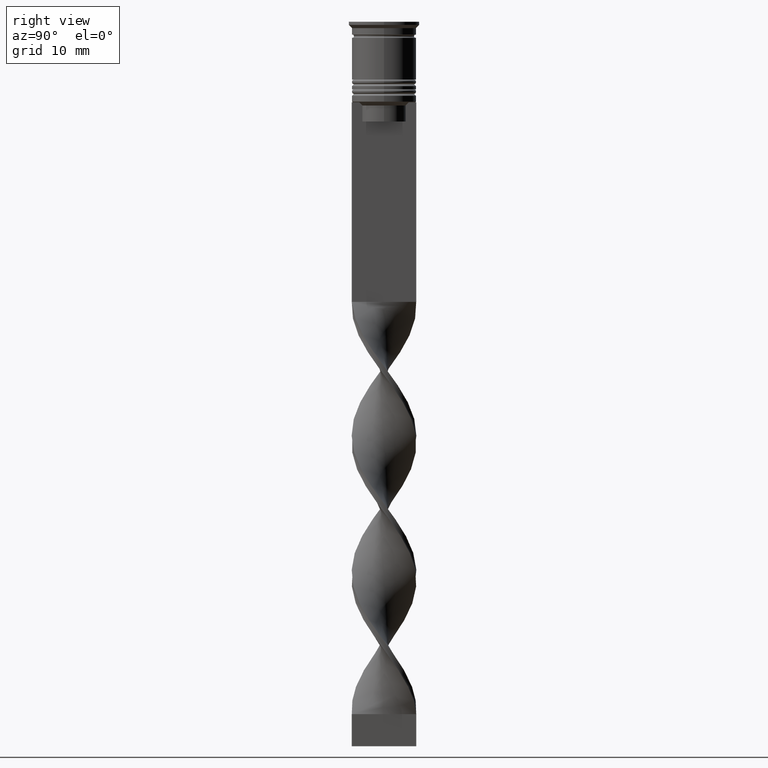
[diagram: clean part render]
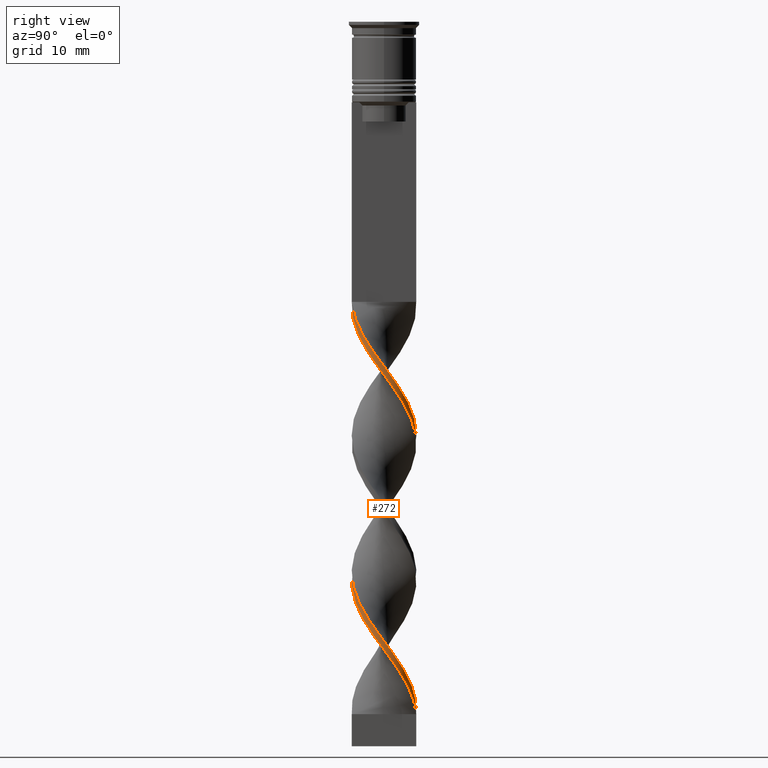
[diagram: same view with one face highlighted and labeled with its STEP entity id]
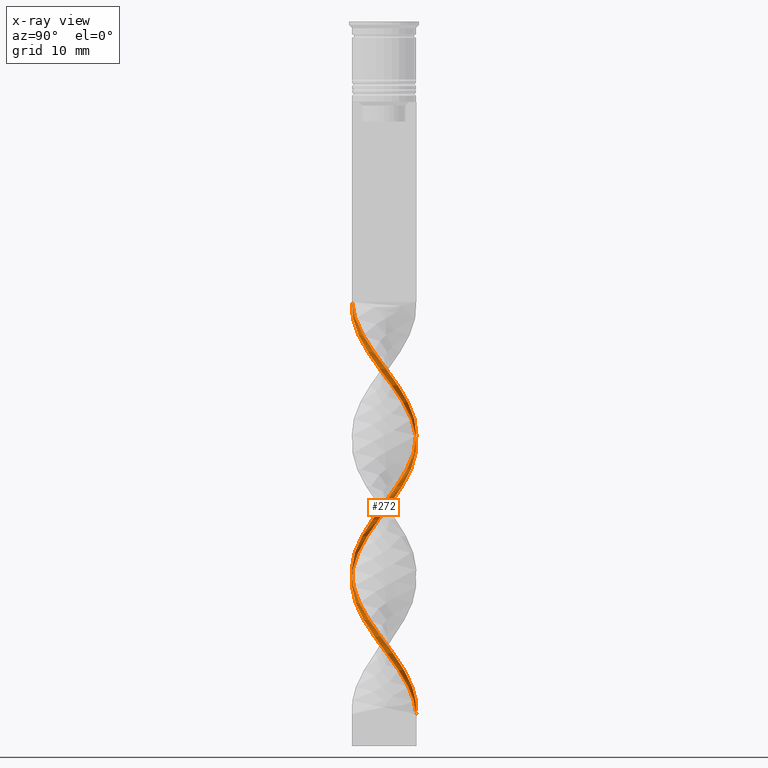
[diagram: x-ray of the same camera — body ghosted, the highlighted face saturated]
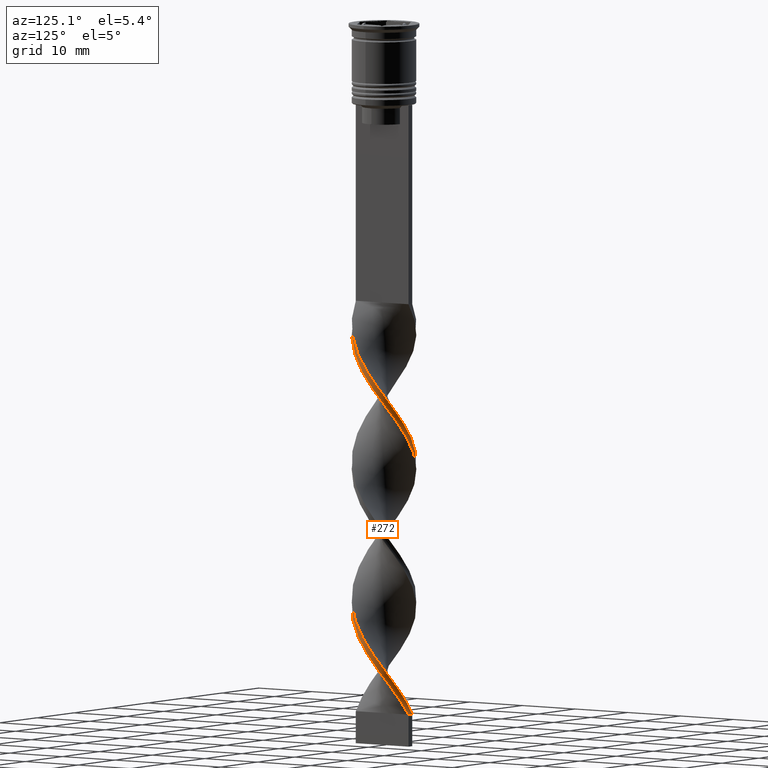
[diagram: same view with one face highlighted and labeled with its STEP entity id]
A machine part, right view. The second image highlights one B-rep face of the part: STEP entity #272.
The next image is the same camera in x-ray: the body ghosted, the highlighted face saturated — about 0% of this face is hidden behind the body in this view.
A second angle (auxiliary view) of the same face is appended — the face is thin or edge-on in the first view.
In plain terms, the highlighted face is a freeform B-spline surface patch.
Its self-contained STEP definition (entity closure, byte-faithful):
#12 = CARTESIAN_POINT ( 'NONE',  ( -0.7111074127247671850, -4.974366919274038068, -84.52564102564103621 ) ) ;
#29 = CARTESIAN_POINT ( 'NONE',  ( -4.398951702833859834, 2.428831800708950883, -71.39743589743588359 ) ) ;
#33 = CARTESIAN_POINT ( 'NONE',  ( -0.4999999999999993339, 4.999999999999999112, -64.83333333333332860 ) ) ;
#40 = CARTESIAN_POINT ( 'NONE',  ( 0.5000000000000000000, -4.999999999999999112, -43.50000000000000000 ) ) ;
#42 = CARTESIAN_POINT ( 'NONE',  ( -5.036723384328412934, -0.5036723384328404274, -75.49999999999998579 ) ) ;
#47 = CARTESIAN_POINT ( 'NONE',  ( -4.104038128678483943, 2.962961240565979537, -70.57692307692306599 ) ) ;
#61 = CARTESIAN_POINT ( 'NONE',  ( -1.315104909338220551, 4.888022846936948440, -67.29487179487178139 ) ) ;
#79 = CARTESIAN_POINT ( 'NONE',  ( 3.830886956102703245, -3.251815666602607013, -92.73076923076922640 ) ) ;
#95 = CARTESIAN_POINT ( 'NONE',  ( 2.941357917118423870, -4.074115069975903225, -48.42307692307691269 ) ) ;
#102 = CARTESIAN_POINT ( 'NONE',  ( 0.1071099161113025777, -5.060710991611129472, -44.32051282051282470 ) ) ;
#111 = CARTESIAN_POINT ( 'NONE',  ( -1.682049230150818975, -4.735051254986478497, -84.52564102564103621 ) ) ;
#125 = CARTESIAN_POINT ( 'NONE',  ( 1.107109916111304937, 4.939289008388868751, -64.01282051282051100 ) ) ;
#135 = CARTESIAN_POINT ( 'NONE',  ( 4.693865276989234836, 1.894702360851922673, -100.1153846153846274 ) ) ;
#144 = CARTESIAN_POINT ( 'NONE',  ( -1.682049230150818975, -4.735051254986478497, -84.52564102564103621 ) ) ;
#157 = CARTESIAN_POINT ( 'NONE',  ( 4.852383656948341617, -1.305516313869971246, -51.70512820512820440 ) ) ;
#161 = CARTESIAN_POINT ( 'NONE',  ( 4.225728863414809133, -2.786661774892328136, -50.88461538461537970 ) ) ;
#169 = CARTESIAN_POINT ( 'NONE',  ( 4.497778769905805163, 2.240532556555384414, -99.29487179487178139 ) ) ;
#185 = CARTESIAN_POINT ( 'NONE',  ( -2.766343873045450152, -4.194918542244163717, -82.88461538461537259 ) ) ;
#195 = CARTESIAN_POINT ( 'NONE',  ( 3.689868665289526728, 3.410992411735105811, -102.5769230769230660 ) ) ;
#196 = CARTESIAN_POINT ( 'NONE',  ( -0.1071099161113053949, -5.060710991611129472, -85.34615384615385381 ) ) ;
#200 = CARTESIAN_POINT ( 'NONE',  ( 2.256988544190325907, -4.530813501584092684, -45.96153846153845279 ) ) ;
#212 = CARTESIAN_POINT ( 'NONE',  ( 0.5000000000000006661, 4.999999999999999112, -107.5000000000000000 ) ) ;
#213 = CARTESIAN_POINT ( 'NONE',  ( 3.830886956102703245, 3.251815666602606569, -100.9358974358974308 ) ) ;
#226 = CARTESIAN_POINT ( 'NONE',  ( 0.5000000000000000000, -4.999999999999999112, -43.50000000000000000 ) ) ;
#230 = CARTESIAN_POINT ( 'NONE',  ( 4.693865276989234836, -1.894702360851923340, -93.55128205128204399 ) ) ;
#256 = CARTESIAN_POINT ( 'NONE',  ( 3.436045048790599132, 3.716969558312884558, -101.7564102564102484 ) ) ;
#271 = CARTESIAN_POINT ( 'NONE',  ( 1.315104909338224326, 4.888022846936946664, -62.37179487179486870 ) ) ;
#272 = ADVANCED_FACE ( 'NONE', ( #1051 ), #3033, .T. ) ;
#288 = CARTESIAN_POINT ( 'NONE',  ( 1.315104909338224326, 4.888022846936946664, -105.0384615384615330 ) ) ;
#294 = CARTESIAN_POINT ( 'NONE',  ( 2.446670785446252605, 4.431260581638918339, -60.73076923076922640 ) ) ;
#311 = CARTESIAN_POINT ( 'NONE',  ( -2.766343873045446600, 4.194918542244165494, -68.11538461538459899 ) ) ;
#316 = CARTESIAN_POINT ( 'NONE',  ( 5.010902036907448398, -0.7163302668880181523, -52.52564102564102910 ) ) ;
#321 = CARTESIAN_POINT ( 'NONE',  ( 3.830886956102703245, -3.251815666602607013, -50.06410256410256210 ) ) ;
#323 = EDGE_CURVE ( 'NONE', #3617, #2524, #2730, .T. ) ;
#327 = CARTESIAN_POINT ( 'NONE',  ( -4.497778769905805163, -2.240532556555384858, -77.96153846153845279 ) ) ;
#340 = CARTESIAN_POINT ( 'NONE',  ( 0.7111074127247642984, 4.974366919274038068, -105.8589743589743506 ) ) ;
#362 = CARTESIAN_POINT ( 'NONE',  ( -5.036723384328412934, 0.5036723384328424258, -75.49999999999998579 ) ) ;
#378 = CARTESIAN_POINT ( 'NONE',  ( -0.1071099161113013842, 5.060710991611130360, -65.65384615384614619 ) ) ;
#391 = CARTESIAN_POINT ( 'NONE',  ( 1.107109916111304715, 4.939289008388868751, -64.01282051282051100 ) ) ;
#400 = CARTESIAN_POINT ( 'NONE',  ( 5.010902036907447510, 0.7163302668880174862, -55.80769230769230660 ) ) ;
#406 = CARTESIAN_POINT ( 'NONE',  ( 4.398951702833859834, 2.428831800708949995, -58.26923076923076650 ) ) ;
#420 = CARTESIAN_POINT ( 'NONE',  ( 2.256988544190328128, 4.530813501584091796, -62.37179487179486870 ) ) ;
#427 = CARTESIAN_POINT ( 'NONE',  ( 2.256988544190327683, 4.530813501584091796, -105.0384615384615330 ) ) ;
#436 = CARTESIAN_POINT ( 'NONE',  ( -0.1071099161113013842, 5.060710991611129472, -65.65384615384614619 ) ) ;
#444 = CARTESIAN_POINT ( 'NONE',  ( 5.036723384328413822, 0.5036723384328410935, -96.83333333333332860 ) ) ;
#452 = CARTESIAN_POINT ( 'NONE',  ( -4.693865276989234836, -1.894702360851920231, -78.78205128205127039 ) ) ;
#457 = DIRECTION ( 'NONE',  ( -1.000000000000000000, 0.000000000000000000, 0.000000000000000000 ) ) ;
#461 = CARTESIAN_POINT ( 'NONE',  ( 4.852383656948341617, -1.305516313869971246, -94.37179487179486159 ) ) ;
#467 = CARTESIAN_POINT ( 'NONE',  ( 0.5000000000000000000, -4.999999999999999112, -43.50000000000000000 ) ) ;
#476 = CARTESIAN_POINT ( 'NONE',  ( -4.225728863414807357, 2.786661774892330357, -72.21794871794871540 ) ) ;
#484 = CARTESIAN_POINT ( 'NONE',  ( 3.275699201900568180, 3.859023582904236527, -103.3974358974358694 ) ) ;
#485 = CARTESIAN_POINT ( 'NONE',  ( -2.446670785446253493, -4.431260581638918339, -82.06410256410255499 ) ) ;
#497 = ORIENTED_EDGE ( 'NONE', *, *, #1959, .T. ) ;
#508 = CARTESIAN_POINT ( 'NONE',  ( 4.104038128678483943, -2.962961240565977761, -49.24358974358973740 ) ) ;
#528 = CARTESIAN_POINT ( 'NONE',  ( 5.010902036907449286, -0.7163302668880181523, -95.19230769230769340 ) ) ;
#551 = CARTESIAN_POINT ( 'NONE',  ( -2.256988544190325019, 4.530813501584093572, -67.29487179487178139 ) ) ;
#566 = CARTESIAN_POINT ( 'NONE',  ( 2.941357917118426091, 4.074115069975901449, -102.5769230769230660 ) ) ;
#583 = CARTESIAN_POINT ( 'NONE',  ( -0.4999999999999993339, 4.999999999999999112, -64.83333333333332860 ) ) ;
#589 = CARTESIAN_POINT ( 'NONE',  ( 2.766343873045447044, -4.194918542244165494, -46.78205128205127750 ) ) ;
#596 = CARTESIAN_POINT ( 'NONE',  ( 2.941357917118423870, -4.074115069975903225, -48.42307692307691269 ) ) ;
#605 = CARTESIAN_POINT ( 'NONE',  ( 5.036723384328412934, 0.5036723384328410935, -96.83333333333332860 ) ) ;
#618 = CARTESIAN_POINT ( 'NONE',  ( -0.5000000000000000000, -4.999999999999999112, -86.16666666666667140 ) ) ;
#626 = CARTESIAN_POINT ( 'NONE',  ( 1.107109916111302717, -4.939289008388868751, -44.32051282051282470 ) ) ;
#638 = CARTESIAN_POINT ( 'NONE',  ( 1.880887847392237244, -4.659641714287933389, -89.44871794871794179 ) ) ;
#660 = CARTESIAN_POINT ( 'NONE',  ( 1.682049230150816088, 4.735051254986480274, -63.19230769230768630 ) ) ;
#676 = CARTESIAN_POINT ( 'NONE',  ( -1.880887847392236800, 4.659641714287933389, -68.11538461538459899 ) ) ;
#687 = CARTESIAN_POINT ( 'NONE',  ( 4.903276030362607507, -1.099037838325642946, -53.34615384615383959 ) ) ;
#691 = CARTESIAN_POINT ( 'NONE',  ( 0.7111074127247624110, -4.974366919274038068, -45.14102564102563520 ) ) ;
#692 = CARTESIAN_POINT ( 'NONE',  ( 1.682049230150814534, -4.735051254986480274, -45.14102564102563520 ) ) ;
#701 = CARTESIAN_POINT ( 'NONE',  ( 4.225728863414809133, -2.786661774892328136, -93.55128205128204399 ) ) ;
#725 = CARTESIAN_POINT ( 'NONE',  ( 4.398951702833859834, 2.428831800708949995, -100.9358974358974308 ) ) ;
#732 = CARTESIAN_POINT ( 'NONE',  ( 5.010902036907448398, -0.7163302668880181523, -95.19230769230769340 ) ) ;
#740 = CARTESIAN_POINT ( 'NONE',  ( 0.5000000000000006661, 4.999999999999999112, -64.83333333333332860 ) ) ;
#749 = CARTESIAN_POINT ( 'NONE',  ( 5.023812710617931110, 0.1063289642275872526, -97.65384615384614619 ) ) ;
#758 = CARTESIAN_POINT ( 'NONE',  ( 5.010902036907447510, 0.7163302668880174862, -98.47435897435896379 ) ) ;
#775 = CARTESIAN_POINT ( 'NONE',  ( -0.4999999999999993339, 4.999999999999999112, -107.5000000000000000 ) ) ;
#794 = CARTESIAN_POINT ( 'NONE',  ( 2.766343873045447044, -4.194918542244165494, -46.78205128205127750 ) ) ;
#809 = CARTESIAN_POINT ( 'NONE',  ( 3.436045048790599132, 3.716969558312884558, -59.08974358974359120 ) ) ;
#824 = CARTESIAN_POINT ( 'NONE',  ( 2.446670785446252605, 4.431260581638919227, -60.73076923076922640 ) ) ;
#847 = CARTESIAN_POINT ( 'NONE',  ( 4.693865276989234836, -1.894702360851923117, -93.55128205128204399 ) ) ;
#864 = CARTESIAN_POINT ( 'NONE',  ( -1.682049230150812980, 4.735051254986481162, -66.47435897435896379 ) ) ;
#868 = CARTESIAN_POINT ( 'NONE',  ( 0.1071099161113048537, 5.060710991611129472, -64.01282051282051100 ) ) ;
#876 = CARTESIAN_POINT ( 'NONE',  ( 2.766343873045447044, -4.194918542244165494, -89.44871794871794179 ) ) ;
#883 = CARTESIAN_POINT ( 'NONE',  ( -1.107109916111301606, 4.939289008388868751, -65.65384615384614619 ) ) ;
#899 = CARTESIAN_POINT ( 'NONE',  ( -0.5000000000000000000, -4.999999999999999112, -43.50000000000000000 ) ) ;
#916 = CARTESIAN_POINT ( 'NONE',  ( 0.1071099161113025638, -5.060710991611130360, -44.32051282051282470 ) ) ;
#932 = CARTESIAN_POINT ( 'NONE',  ( 3.830886956102703245, -3.251815666602607013, -50.06410256410256210 ) ) ;
#950 = CARTESIAN_POINT ( 'NONE',  ( 4.497778769905805163, -2.240532556555385746, -51.70512820512820440 ) ) ;
#954 = EDGE_LOOP ( 'NONE', ( #497, #1748, #991, #1069 ) ) ;
#962 = CARTESIAN_POINT ( 'NONE',  ( -5.036723384328413822, 0.5036723384328424258, -75.50000000000000000 ) ) ;
#968 = CARTESIAN_POINT ( 'NONE',  ( 5.010902036907448398, 0.7163302668880174862, -55.80769230769230660 ) ) ;
#969 = CARTESIAN_POINT ( 'NONE',  ( 3.689868665289525396, -3.410992411735107588, -48.42307692307691269 ) ) ;
#978 = CARTESIAN_POINT ( 'NONE',  ( -3.275699201900568625, -3.859023582904236527, -82.06410256410255499 ) ) ;
#983 = CARTESIAN_POINT ( 'NONE',  ( 4.225728863414809133, 2.786661774892327692, -57.44871794871794890 ) ) ;
#991 = ORIENTED_EDGE ( 'NONE', *, *, #323, .F. ) ;
#992 = CARTESIAN_POINT ( 'NONE',  ( 4.852383656948341617, 1.305516313869969469, -99.29487179487178139 ) ) ;
#1002 = CARTESIAN_POINT ( 'NONE',  ( -0.4999999999999993339, 4.999999999999999112, -107.5000000000000000 ) ) ;
#1004 = CARTESIAN_POINT ( 'NONE',  ( -4.903276030362609283, -1.099037838325638727, -76.32051282051281760 ) ) ;
#1017 = CARTESIAN_POINT ( 'NONE',  ( -3.830886956102703245, 3.251815666602607013, -71.39743589743588359 ) ) ;
#1025 = CARTESIAN_POINT ( 'NONE',  ( 4.903276030362607507, -1.099037838325642946, -96.01282051282051100 ) ) ;
#1026 = CARTESIAN_POINT ( 'NONE',  ( 1.107109916111302717, -4.939289008388868751, -86.98717948717948900 ) ) ;
#1038 = CARTESIAN_POINT ( 'NONE',  ( 1.880887847392237244, -4.659641714287933389, -89.44871794871794179 ) ) ;
#1044 = LINE ( 'NONE', #226, #1064 ) ;
#1047 = CARTESIAN_POINT ( 'NONE',  ( 4.769828676396802969, -1.694403338218443800, -95.19230769230769340 ) ) ;
#1048 = CARTESIAN_POINT ( 'NONE',  ( 1.682049230150814534, -4.735051254986480274, -87.80769230769230660 ) ) ;
#1051 = FACE_OUTER_BOUND ( 'NONE', #954, .T. ) ;
#1062 = CARTESIAN_POINT ( 'NONE',  ( 5.010902036907448398, 0.7163302668880174862, -98.47435897435896379 ) ) ;
#1063 = CARTESIAN_POINT ( 'NONE',  ( -4.852383656948341617, 1.305516313869971912, -73.03846153846153300 ) ) ;
#1064 = VECTOR ( 'NONE', #457, 1000.000000000000000 ) ;
#1069 = ORIENTED_EDGE ( 'NONE', *, *, #1498, .F. ) ;
#1106 = CARTESIAN_POINT ( 'NONE',  ( 1.682049230150814534, -4.735051254986480274, -87.80769230769230660 ) ) ;
#1122 = CARTESIAN_POINT ( 'NONE',  ( 2.256988544190325907, -4.530813501584092684, -88.62820512820513841 ) ) ;
#1143 = CARTESIAN_POINT ( 'NONE',  ( 5.023812710617931110, -0.1063289642275889874, -53.34615384615383959 ) ) ;
#1162 = CARTESIAN_POINT ( 'NONE',  ( 0.5000000000000000000, -4.999999999999999112, -86.16666666666667140 ) ) ;
#1173 = CARTESIAN_POINT ( 'NONE',  ( 3.689868665289526728, 3.410992411735105811, -59.91025641025640880 ) ) ;
#1177 = VERTEX_POINT ( 'NONE', #3449 ) ;
#1196 = CARTESIAN_POINT ( 'NONE',  ( -3.830886956102703245, 3.251815666602607013, -71.39743589743588359 ) ) ;
#1211 = CARTESIAN_POINT ( 'NONE',  ( 1.315104909338222106, -4.888022846936947552, -45.96153846153845279 ) ) ;
#1226 = CARTESIAN_POINT ( 'NONE',  ( 2.766343873045447488, 4.194918542244164605, -61.55128205128204399 ) ) ;
#1227 = EDGE_CURVE ( 'NONE', #1177, #2524, #3275, .T. ) ;
#1241 = CARTESIAN_POINT ( 'NONE',  ( -4.903276030362607507, 1.099037838325644723, -74.67948717948718240 ) ) ;
#1251 = CARTESIAN_POINT ( 'NONE',  ( -5.010902036907449286, -0.7163302668880155988, -77.14102564102563520 ) ) ;
#1259 = CARTESIAN_POINT ( 'NONE',  ( 0.5000000000000006661, 4.999999999999999112, -107.5000000000000000 ) ) ;
#1261 = CARTESIAN_POINT ( 'NONE',  ( 5.036723384328413822, -0.5036723384328417596, -54.16666666666666430 ) ) ;
#1267 = CARTESIAN_POINT ( 'NONE',  ( 4.852383656948341617, 1.305516313869969469, -99.29487179487178139 ) ) ;
#1268 = CARTESIAN_POINT ( 'NONE',  ( 4.769828676396803857, 1.694403338218442689, -55.80769230769230660 ) ) ;
#1275 = CARTESIAN_POINT ( 'NONE',  ( 5.036723384328413822, -0.5036723384328417596, -96.83333333333332860 ) ) ;
#1283 = CARTESIAN_POINT ( 'NONE',  ( -5.023812710617931110, 0.1063289642275907221, -74.67948717948718240 ) ) ;
#1288 = CARTESIAN_POINT ( 'NONE',  ( 5.010902036907449286, -0.7163302668880181523, -52.52564102564103621 ) ) ;
#1293 = CARTESIAN_POINT ( 'NONE',  ( 5.023812710617931110, 0.1063289642275872526, -54.98717948717948190 ) ) ;
#1306 = CARTESIAN_POINT ( 'NONE',  ( 4.225728863414809133, 2.786661774892327692, -100.1153846153846132 ) ) ;
#1320 = CARTESIAN_POINT ( 'NONE',  ( -2.256988544190328572, -4.530813501584091796, -83.70512820512820440 ) ) ;
#1329 = CARTESIAN_POINT ( 'NONE',  ( 3.689868665289525396, -3.410992411735107588, -91.08974358974359120 ) ) ;
#1346 = CARTESIAN_POINT ( 'NONE',  ( 5.023812710617931110, -0.1063289642275889874, -96.01282051282051100 ) ) ;
#1352 = CARTESIAN_POINT ( 'NONE',  ( 2.766343873045447488, 4.194918542244164605, -104.2179487179487012 ) ) ;
#1360 = CARTESIAN_POINT ( 'NONE',  ( 2.256988544190326351, -4.530813501584092684, -88.62820512820512420 ) ) ;
#1387 = CARTESIAN_POINT ( 'NONE',  ( 4.497778769905805163, 2.240532556555384414, -56.62820512820513130 ) ) ;
#1392 = CARTESIAN_POINT ( 'NONE',  ( 1.107109916111304937, 4.939289008388868751, -106.6794871794871824 ) ) ;
#1402 = CARTESIAN_POINT ( 'NONE',  ( -2.941357917118426535, -4.074115069975901449, -81.24358974358973740 ) ) ;
#1410 = CARTESIAN_POINT ( 'NONE',  ( 2.256988544190328128, 4.530813501584091796, -105.0384615384615188 ) ) ;
#1420 = CARTESIAN_POINT ( 'NONE',  ( -4.903276030362609283, -1.099037838325638727, -76.32051282051281760 ) ) ;
#1429 = CARTESIAN_POINT ( 'NONE',  ( 1.315104909338224104, 4.888022846936946664, -62.37179487179486870 ) ) ;
#1444 = CARTESIAN_POINT ( 'NONE',  ( -4.225728863414810910, -2.786661774892325028, -78.78205128205127039 ) ) ;
#1450 = CARTESIAN_POINT ( 'NONE',  ( 3.830886956102703245, 3.251815666602606569, -58.26923076923076650 ) ) ;
#1460 = CARTESIAN_POINT ( 'NONE',  ( 4.497778769905805163, 2.240532556555384414, -99.29487179487178139 ) ) ;
#1467 = CARTESIAN_POINT ( 'NONE',  ( 5.023812710617931110, -0.1063289642275889874, -53.34615384615383959 ) ) ;
#1478 = CARTESIAN_POINT ( 'NONE',  ( 0.1071099161113048398, 5.060710991611130360, -106.6794871794871682 ) ) ;
#1483 = CARTESIAN_POINT ( 'NONE',  ( 4.903276030362607507, 1.099037838325641392, -54.98717948717948190 ) ) ;
#1497 = CARTESIAN_POINT ( 'NONE',  ( 2.941357917118423870, -4.074115069975903225, -91.08974358974359120 ) ) ;
#1498 = EDGE_CURVE ( 'NONE', #1636, #3617, #2641, .T. ) ;
#1513 = CARTESIAN_POINT ( 'NONE',  ( -2.941357917118423870, 4.074115069975903225, -69.75641025641024839 ) ) ;
#1527 = CARTESIAN_POINT ( 'NONE',  ( -3.689868665289527172, -3.410992411735105367, -81.24358974358973740 ) ) ;
#1536 = CARTESIAN_POINT ( 'NONE',  ( 4.693865276989234836, 1.894702360851922895, -57.44871794871794890 ) ) ;
#1545 = CARTESIAN_POINT ( 'NONE',  ( 3.275699201900568180, 3.859023582904236527, -60.73076923076922640 ) ) ;
#1546 = CARTESIAN_POINT ( 'NONE',  ( 4.693865276989234836, -1.894702360851923340, -50.88461538461537970 ) ) ;
#1555 = CARTESIAN_POINT ( 'NONE',  ( -3.436045048790596468, 3.716969558312887667, -70.57692307692306599 ) ) ;
#1568 = CARTESIAN_POINT ( 'NONE',  ( 4.398951702833859834, -2.428831800708950883, -50.06410256410256210 ) ) ;
#1573 = CARTESIAN_POINT ( 'NONE',  ( 3.689868665289526728, 3.410992411735105811, -102.5769230769230660 ) ) ;
#1580 = CARTESIAN_POINT ( 'NONE',  ( -5.010902036907447510, 0.7163302668880177082, -73.85897435897436480 ) ) ;
#1588 = CARTESIAN_POINT ( 'NONE',  ( 4.769828676396802969, -1.694403338218443578, -52.52564102564102910 ) ) ;
#1598 = CARTESIAN_POINT ( 'NONE',  ( 4.225728863414809133, -2.786661774892327692, -93.55128205128204399 ) ) ;
#1600 = CARTESIAN_POINT ( 'NONE',  ( -3.830886956102704577, -3.251815666602606125, -79.60256410256410220 ) ) ;
#1610 = CARTESIAN_POINT ( 'NONE',  ( 2.766343873045447488, 4.194918542244164605, -61.55128205128204399 ) ) ;
#1619 = CARTESIAN_POINT ( 'NONE',  ( 3.275699201900567292, -3.859023582904237415, -90.26923076923077360 ) ) ;
#1636 = VERTEX_POINT ( 'NONE', #40 ) ;
#1638 = CARTESIAN_POINT ( 'NONE',  ( 0.5000000000000000000, -4.999999999999999112, -86.16666666666667140 ) ) ;
#1642 = CARTESIAN_POINT ( 'NONE',  ( 4.693865276989234836, -1.894702360851923117, -50.88461538461538680 ) ) ;
#1663 = CARTESIAN_POINT ( 'NONE',  ( -2.446670785446253493, -4.431260581638919227, -82.06410256410255499 ) ) ;
#1682 = CARTESIAN_POINT ( 'NONE',  ( -5.010902036907448398, 0.7163302668880177082, -73.85897435897436480 ) ) ;
#1699 = CARTESIAN_POINT ( 'NONE',  ( 2.446670785446252605, 4.431260581638919227, -103.3974358974358694 ) ) ;
#1706 = CARTESIAN_POINT ( 'NONE',  ( 1.682049230150816088, 4.735051254986480274, -105.8589743589743506 ) ) ;
#1716 = CARTESIAN_POINT ( 'NONE',  ( -3.689868665289524952, 3.410992411735108476, -69.75641025641024839 ) ) ;
#1741 = CARTESIAN_POINT ( 'NONE',  ( -1.107109916111301828, 4.939289008388868751, -65.65384615384614619 ) ) ;
#1745 = CARTESIAN_POINT ( 'NONE',  ( -2.256988544190325019, 4.530813501584093572, -67.29487179487178139 ) ) ;
#1748 = ORIENTED_EDGE ( 'NONE', *, *, #1227, .T. ) ;
#1755 = CARTESIAN_POINT ( 'NONE',  ( -2.766343873045450152, -4.194918542244163717, -82.88461538461537259 ) ) ;
#1762 = CARTESIAN_POINT ( 'NONE',  ( 0.5000000000000000000, -4.999999999999999112, -43.50000000000000000 ) ) ;
#1773 = CARTESIAN_POINT ( 'NONE',  ( 2.446670785446252161, -4.431260581638920115, -90.26923076923075939 ) ) ;
#1798 = CARTESIAN_POINT ( 'NONE',  ( -0.7111074127247609677, 4.974366919274038956, -66.47435897435896379 ) ) ;
#1812 = CARTESIAN_POINT ( 'NONE',  ( -3.275699201900568625, -3.859023582904236527, -82.06410256410255499 ) ) ;
#1820 = CARTESIAN_POINT ( 'NONE',  ( 1.315104909338222328, -4.888022846936947552, -88.62820512820512420 ) ) ;
#1824 = CARTESIAN_POINT ( 'NONE',  ( 3.436045048790597800, -3.716969558312886335, -49.24358974358973740 ) ) ;
#1836 = CARTESIAN_POINT ( 'NONE',  ( 4.769828676396802969, -1.694403338218443578, -95.19230769230769340 ) ) ;
#1859 = CARTESIAN_POINT ( 'NONE',  ( 4.104038128678485720, 2.962961240565976428, -101.7564102564102484 ) ) ;
#1866 = CARTESIAN_POINT ( 'NONE',  ( 4.903276030362607507, 1.099037838325641392, -97.65384615384614619 ) ) ;
#1875 = CARTESIAN_POINT ( 'NONE',  ( -5.010902036907448398, -0.7163302668880155988, -77.14102564102563520 ) ) ;
#1885 = CARTESIAN_POINT ( 'NONE',  ( 3.436045048790599132, 3.716969558312884558, -101.7564102564102484 ) ) ;
#1893 = CARTESIAN_POINT ( 'NONE',  ( -0.7111074127247609677, 4.974366919274038956, -66.47435897435896379 ) ) ;
#1907 = CARTESIAN_POINT ( 'NONE',  ( -5.036723384328413822, -0.5036723384328405384, -75.50000000000000000 ) ) ;
#1928 = CARTESIAN_POINT ( 'NONE',  ( 4.497778769905805163, -2.240532556555385746, -94.37179487179486159 ) ) ;
#1933 = CARTESIAN_POINT ( 'NONE',  ( 3.275699201900567736, -3.859023582904237415, -47.60256410256408799 ) ) ;
#1949 = CARTESIAN_POINT ( 'NONE',  ( 3.275699201900567736, -3.859023582904237415, -90.26923076923075939 ) ) ;
#1959 = EDGE_CURVE ( 'NONE', #1636, #1177, #1044, .T. ) ;
#1967 = CARTESIAN_POINT ( 'NONE',  ( 1.880887847392238132, 4.659641714287932501, -61.55128205128204399 ) ) ;
#1988 = CARTESIAN_POINT ( 'NONE',  ( 4.903276030362607507, 1.099037838325641392, -97.65384615384614619 ) ) ;
#2003 = CARTESIAN_POINT ( 'NONE',  ( -5.023812710617931110, 0.1063289642275907221, -74.67948717948718240 ) ) ;
#2009 = CARTESIAN_POINT ( 'NONE',  ( 1.880887847392238132, 4.659641714287932501, -61.55128205128204399 ) ) ;
#2021 = CARTESIAN_POINT ( 'NONE',  ( 4.852383656948341617, -1.305516313869971246, -94.37179487179486159 ) ) ;
#2032 = CARTESIAN_POINT ( 'NONE',  ( -1.682049230150812980, 4.735051254986481162, -66.47435897435896379 ) ) ;
#2042 = CARTESIAN_POINT ( 'NONE',  ( -5.023812710617931110, -0.1063289642275845326, -76.32051282051281760 ) ) ;
#2046 = CARTESIAN_POINT ( 'NONE',  ( -3.275699201900567292, 3.859023582904237415, -68.93589743589743080 ) ) ;
#2052 = CARTESIAN_POINT ( 'NONE',  ( 1.315104909338222328, -4.888022846936947552, -45.96153846153845990 ) ) ;
#2057 = CARTESIAN_POINT ( 'NONE',  ( 0.7111074127247624110, -4.974366919274038068, -87.80769230769230660 ) ) ;
#2072 = CARTESIAN_POINT ( 'NONE',  ( 4.903276030362607507, -1.099037838325642946, -53.34615384615383959 ) ) ;
#2095 = CARTESIAN_POINT ( 'NONE',  ( 5.023812710617931110, 0.1063289642275872526, -54.98717948717948190 ) ) ;
#2103 = CARTESIAN_POINT ( 'NONE',  ( 0.1071099161113025777, -5.060710991611129472, -86.98717948717948900 ) ) ;
#2109 = CARTESIAN_POINT ( 'NONE',  ( -2.446670785446251273, 4.431260581638920115, -68.93589743589743080 ) ) ;
#2110 = CARTESIAN_POINT ( 'NONE',  ( 5.036723384328413822, 0.5036723384328410935, -54.16666666666666430 ) ) ;
#2121 = CARTESIAN_POINT ( 'NONE',  ( 2.446670785446252161, -4.431260581638919227, -90.26923076923077360 ) ) ;
#2141 = CARTESIAN_POINT ( 'NONE',  ( 4.693865276989234836, 1.894702360851922895, -100.1153846153846132 ) ) ;
#2153 = CARTESIAN_POINT ( 'NONE',  ( 4.398951702833859834, 2.428831800708949995, -100.9358974358974308 ) ) ;
#2154 = CARTESIAN_POINT ( 'NONE',  ( -1.880887847392241019, -4.659641714287931613, -82.88461538461537259 ) ) ;
#2161 = CARTESIAN_POINT ( 'NONE',  ( 4.398951702833859834, 2.428831800708949995, -58.26923076923076650 ) ) ;
#2170 = CARTESIAN_POINT ( 'NONE',  ( 4.104038128678484831, -2.962961240565978205, -91.91025641025643722 ) ) ;
#2178 = CARTESIAN_POINT ( 'NONE',  ( 3.830886956102703245, -3.251815666602607013, -92.73076923076922640 ) ) ;
#2186 = CARTESIAN_POINT ( 'NONE',  ( 1.107109916111304715, 4.939289008388868751, -106.6794871794871682 ) ) ;
#2187 = CARTESIAN_POINT ( 'NONE',  ( -4.769828676396803857, -1.694403338218441135, -77.14102564102563520 ) ) ;
#2210 = CARTESIAN_POINT ( 'NONE',  ( -2.941357917118426535, -4.074115069975901449, -81.24358974358973740 ) ) ;
#2233 = CARTESIAN_POINT ( 'NONE',  ( 3.830886956102703245, 3.251815666602606569, -58.26923076923076650 ) ) ;
#2248 = CARTESIAN_POINT ( 'NONE',  ( 0.7111074127247642984, 4.974366919274038068, -63.19230769230768630 ) ) ;
#2268 = CARTESIAN_POINT ( 'NONE',  ( 4.398951702833859834, -2.428831800708950883, -92.73076923076922640 ) ) ;
#2292 = CARTESIAN_POINT ( 'NONE',  ( 4.903276030362607507, 1.099037838325641392, -54.98717948717948190 ) ) ;
#2310 = CARTESIAN_POINT ( 'NONE',  ( -4.852383656948341617, 1.305516313869971912, -73.03846153846153300 ) ) ;
#2316 = CARTESIAN_POINT ( 'NONE',  ( 2.256988544190326351, -4.530813501584092684, -45.96153846153845990 ) ) ;
#2326 = CARTESIAN_POINT ( 'NONE',  ( 2.256988544190327683, 4.530813501584091796, -62.37179487179486870 ) ) ;
#2336 = CARTESIAN_POINT ( 'NONE',  ( -4.398951702833859834, 2.428831800708950883, -71.39743589743588359 ) ) ;
#2349 = CARTESIAN_POINT ( 'NONE',  ( -4.903276030362607507, 1.099037838325644723, -74.67948717948718240 ) ) ;
#2366 = CARTESIAN_POINT ( 'NONE',  ( 4.104038128678484831, 2.962961240565976428, -59.08974358974359120 ) ) ;
#2379 = CARTESIAN_POINT ( 'NONE',  ( -4.852383656948341617, -1.305516313869969913, -77.96153846153845279 ) ) ;
#2395 = CARTESIAN_POINT ( 'NONE',  ( -4.769828676396803857, 1.694403338218443134, -73.85897435897436480 ) ) ;
#2404 = CARTESIAN_POINT ( 'NONE',  ( -4.693865276989234836, -1.894702360851920009, -78.78205128205127039 ) ) ;
#2413 = CARTESIAN_POINT ( 'NONE',  ( -5.023812710617931110, -0.1063289642275845326, -76.32051282051281760 ) ) ;
#2429 = CARTESIAN_POINT ( 'NONE',  ( -1.880887847392236800, 4.659641714287933389, -68.11538461538459899 ) ) ;
#2436 = CARTESIAN_POINT ( 'NONE',  ( 1.880887847392238132, 4.659641714287932501, -104.2179487179487012 ) ) ;
#2445 = CARTESIAN_POINT ( 'NONE',  ( 4.104038128678485720, 2.962961240565976428, -59.08974358974358410 ) ) ;
#2458 = CARTESIAN_POINT ( 'NONE',  ( 1.315104909338224104, 4.888022846936946664, -105.0384615384615188 ) ) ;
#2468 = CARTESIAN_POINT ( 'NONE',  ( 0.7111074127247624110, -4.974366919274038068, -87.80769230769230660 ) ) ;
#2476 = CARTESIAN_POINT ( 'NONE',  ( 2.941357917118426091, 4.074115069975901449, -102.5769230769230660 ) ) ;
#2491 = CARTESIAN_POINT ( 'NONE',  ( 0.1071099161113048537, 5.060710991611129472, -106.6794871794871824 ) ) ;
#2515 = CARTESIAN_POINT ( 'NONE',  ( -4.225728863414810910, -2.786661774892325028, -78.78205128205127039 ) ) ;
#2524 = VERTEX_POINT ( 'NONE', #1259 ) ;
#2537 = CARTESIAN_POINT ( 'NONE',  ( -3.275699201900567736, 3.859023582904237415, -68.93589743589743080 ) ) ;
#2554 = CARTESIAN_POINT ( 'NONE',  ( 5.036723384328412934, 0.5036723384328410935, -54.16666666666665719 ) ) ;
#2571 = CARTESIAN_POINT ( 'NONE',  ( 4.225728863414809133, 2.786661774892327248, -100.1153846153846274 ) ) ;
#2580 = CARTESIAN_POINT ( 'NONE',  ( 0.7111074127247642984, 4.974366919274038068, -63.19230769230768630 ) ) ;
#2590 = CARTESIAN_POINT ( 'NONE',  ( -3.436045048790600909, -3.716969558312882782, -80.42307692307691980 ) ) ;
#2595 = CARTESIAN_POINT ( 'NONE',  ( 3.436045048790599132, 3.716969558312884558, -59.08974358974358410 ) ) ;
#2604 = CARTESIAN_POINT ( 'NONE',  ( 3.830886956102703245, 3.251815666602606569, -100.9358974358974308 ) ) ;
#2610 = CARTESIAN_POINT ( 'NONE',  ( -3.689868665289524952, 3.410992411735108476, -69.75641025641024839 ) ) ;
#2620 = CARTESIAN_POINT ( 'NONE',  ( -0.4999999999999993339, 4.999999999999999112, -107.5000000000000000 ) ) ;
#2641 =( BOUNDED_CURVE ( )  B_SPLINE_CURVE ( 2, ( #1762, #626, #692, #2316, #589, #3536, #969, #2971, #3445, #1546, #2911, #316, #1467, #2110, #1483, #1268, #3550, #983, #1450, #2595, #3273, #294, #2009, #1429, #2580, #868, #33, #883, #2032, #1745, #2891, #2046, #2610, #47, #2336, #3188, #1063, #1580, #1283, #1907, #1004, #2187, #2757, #2515, #1600, #3297, #2210, #485, #2154, #3607, #3591, #196, #1638, #1026, #1048, #1360, #3013, #1619, #1329, #2170, #3327, #230, #461, #732, #1346, #444, #1866, #2732, #169, #1306, #213, #1885, #2476, #3051, #2436, #2458, #3314, #2491, #2716 ),
 .UNSPECIFIED., .F., .T. ) 
 B_SPLINE_CURVE_WITH_KNOTS ( ( 3, 2, 2, 2, 2, 2, 2, 2, 2, 2, 2, 2, 2, 2, 2, 2, 2, 2, 2, 2, 2, 2, 2, 2, 2, 2, 2, 2, 2, 2, 2, 2, 2, 2, 2, 2, 2, 2, 2, 3 ),
 ( 0.000000000000000000, 0.01923076923076923184, 0.03846153846153846367, 0.05769230769230768857, 0.07692307692307692735, 0.09615384615384615918, 0.1153846153846153771, 0.1346153846153846090, 0.1538461538461538547, 0.1730769230769230449, 0.1923076923076923184, 0.2115384615384615363, 0.2307692307692307543, 0.2500000000000000000, 0.2692307692307692180, 0.2884615384615384359, 0.3076923076923077094, 0.3269230769230769273, 0.3461538461538460898, 0.3653846153846153633, 0.3846153846153846367, 0.4038461538461539102, 0.4230769230769230727, 0.4423076923076922906, 0.4615384615384615086, 0.4807692307692307820, 0.5000000000000000000, 0.5192307692307692735, 0.5384615384615384359, 0.5576923076923077094, 0.5769230769230768718, 0.5961538461538461453, 0.6153846153846154188, 0.6346153846153845812, 0.6538461538461538547, 0.6730769230769230171, 0.6923076923076921796, 0.7115384615384615641, 0.7307692307692307265, 0.7500000000000000000 ),
 .UNSPECIFIED. ) 
 CURVE ( )  GEOMETRIC_REPRESENTATION_ITEM ( )  RATIONAL_B_SPLINE_CURVE ( ( 1.000000000000000000, 0.9927088740980539727, 1.000000000000000000, 0.9927088740980539727, 1.000000000000000000, 0.9927088740980539727, 1.000000000000000000, 0.9927088740980539727, 1.000000000000000000, 0.9927088740980539727, 1.000000000000000000, 0.9927088740980539727, 1.000000000000000000, 0.9927088740980539727, 1.000000000000000000, 0.9927088740980539727, 1.000000000000000000, 0.9927088740980539727, 1.000000000000000000, 0.9927088740980539727, 1.000000000000000000, 0.9927088740980539727, 1.000000000000000000, 0.9927088740980539727, 1.000000000000000000, 0.9927088740980539727, 1.000000000000000000, 0.9927088740980539727, 1.000000000000000000, 0.9927088740980539727, 1.000000000000000000, 0.9927088740980539727, 1.000000000000000000, 0.9927088740980539727, 1.000000000000000000, 0.9927088740980539727, 1.000000000000000000, 0.9927088740980539727, 1.000000000000000000, 0.9927088740980539727, 1.000000000000000000, 0.9927088740980539727, 1.000000000000000000, 0.9927088740980539727, 1.000000000000000000, 0.9927088740980539727, 1.000000000000000000, 0.9927088740980539727, 1.000000000000000000, 0.9927088740980539727, 1.000000000000000000, 0.9927088740980539727, 1.000000000000000000, 0.9927088740980539727, 1.000000000000000000, 0.9927088740980539727, 1.000000000000000000, 0.9927088740980539727, 1.000000000000000000, 0.9927088740980539727, 1.000000000000000000, 0.9927088740980539727, 1.000000000000000000, 0.9927088740980539727, 1.000000000000000000, 0.9927088740980539727, 1.000000000000000000, 0.9927088740980539727, 1.000000000000000000, 0.9927088740980539727, 1.000000000000000000, 0.9927088740980539727, 1.000000000000000000, 0.9927088740980539727, 1.000000000000000000, 0.9927088740980539727, 1.000000000000000000, 0.9927088740980539727, 1.000000000000000000 ) ) 
 REPRESENTATION_ITEM ( '' )  );
#2646 = CARTESIAN_POINT ( 'NONE',  ( 3.436045048790597800, -3.716969558312886335, -91.91025641025643722 ) ) ;
#2661 = CARTESIAN_POINT ( 'NONE',  ( -4.769828676396803857, 1.694403338218443356, -73.85897435897436480 ) ) ;
#2669 = CARTESIAN_POINT ( 'NONE',  ( -0.5000000000000000000, -4.999999999999999112, -43.50000000000000000 ) ) ;
#2674 = CARTESIAN_POINT ( 'NONE',  ( -2.256988544190328128, -4.530813501584091796, -83.70512820512820440 ) ) ;
#2690 = CARTESIAN_POINT ( 'NONE',  ( -4.497778769905805163, 2.240532556555386634, -73.03846153846153300 ) ) ;
#2697 = CARTESIAN_POINT ( 'NONE',  ( 1.880887847392237244, -4.659641714287933389, -46.78205128205127750 ) ) ;
#2706 = CARTESIAN_POINT ( 'NONE',  ( -1.107109916111305603, -4.939289008388868751, -85.34615384615385381 ) ) ;
#2716 = CARTESIAN_POINT ( 'NONE',  ( -0.4999999999999993339, 4.999999999999999112, -107.5000000000000000 ) ) ;
#2722 = CARTESIAN_POINT ( 'NONE',  ( 4.497778769905805163, -2.240532556555385746, -51.70512820512820440 ) ) ;
#2730 = B_SPLINE_CURVE_WITH_KNOTS ( 'NONE', 3,
 ( #1002, #3272, #3067, #3627 ),
 .UNSPECIFIED., .F., .F.,
 ( 4, 4 ),
 ( 0.000000000000000000, 1.000000000000000000 ),
 .UNSPECIFIED. ) ;
#2731 = CARTESIAN_POINT ( 'NONE',  ( 5.036723384328412934, -0.5036723384328417596, -96.83333333333332860 ) ) ;
#2732 = CARTESIAN_POINT ( 'NONE',  ( 4.769828676396803857, 1.694403338218442689, -98.47435897435896379 ) ) ;
#2744 = CARTESIAN_POINT ( 'NONE',  ( -4.104038128678487496, -2.962961240565973764, -80.42307692307691980 ) ) ;
#2756 = CARTESIAN_POINT ( 'NONE',  ( 4.104038128678484831, 2.962961240565976428, -101.7564102564102484 ) ) ;
#2757 = CARTESIAN_POINT ( 'NONE',  ( -4.497778769905805163, -2.240532556555384858, -77.96153846153845279 ) ) ;
#2761 = CARTESIAN_POINT ( 'NONE',  ( 1.107109916111302717, -4.939289008388868751, -44.32051282051282470 ) ) ;
#2766 = CARTESIAN_POINT ( 'NONE',  ( -4.398951702833860722, -2.428831800708949551, -79.60256410256410220 ) ) ;
#2781 = CARTESIAN_POINT ( 'NONE',  ( 3.275699201900567736, 3.859023582904236527, -103.3974358974358836 ) ) ;
#2816 = CARTESIAN_POINT ( 'NONE',  ( 4.104038128678483943, -2.962961240565977761, -91.91025641025643722 ) ) ;
#2834 = CARTESIAN_POINT ( 'NONE',  ( -3.830886956102704577, -3.251815666602606125, -79.60256410256410220 ) ) ;
#2851 = CARTESIAN_POINT ( 'NONE',  ( 1.880887847392238132, 4.659641714287932501, -104.2179487179487012 ) ) ;
#2869 = CARTESIAN_POINT ( 'NONE',  ( 3.689868665289525396, -3.410992411735107588, -91.08974358974359120 ) ) ;
#2880 = CARTESIAN_POINT ( 'NONE',  ( 3.436045048790597800, -3.716969558312886335, -49.24358974358974450 ) ) ;
#2886 = CARTESIAN_POINT ( 'NONE',  ( 4.769828676396803857, 1.694403338218442912, -55.80769230769230660 ) ) ;
#2891 = CARTESIAN_POINT ( 'NONE',  ( -2.766343873045446600, 4.194918542244165494, -68.11538461538459899 ) ) ;
#2902 = CARTESIAN_POINT ( 'NONE',  ( 5.036723384328412934, -0.5036723384328417596, -54.16666666666665719 ) ) ;
#2911 = CARTESIAN_POINT ( 'NONE',  ( 4.852383656948341617, -1.305516313869971246, -51.70512820512820440 ) ) ;
#2924 = CARTESIAN_POINT ( 'NONE',  ( -4.497778769905805163, 2.240532556555386634, -73.03846153846153300 ) ) ;
#2941 = CARTESIAN_POINT ( 'NONE',  ( 4.769828676396802969, -1.694403338218443800, -52.52564102564103621 ) ) ;
#2955 = CARTESIAN_POINT ( 'NONE',  ( 4.225728863414809133, -2.786661774892327692, -50.88461538461538680 ) ) ;
#2965 = CARTESIAN_POINT ( 'NONE',  ( 2.941357917118423870, -4.074115069975903225, -91.08974358974359120 ) ) ;
#2970 = CARTESIAN_POINT ( 'NONE',  ( 4.693865276989234836, 1.894702360851922673, -57.44871794871794890 ) ) ;
#2971 = CARTESIAN_POINT ( 'NONE',  ( 4.104038128678484831, -2.962961240565978205, -49.24358974358974450 ) ) ;
#2983 = CARTESIAN_POINT ( 'NONE',  ( 3.275699201900567736, 3.859023582904236527, -60.73076923076922640 ) ) ;
#2997 = CARTESIAN_POINT ( 'NONE',  ( 1.682049230150814534, -4.735051254986480274, -45.14102564102563520 ) ) ;
#3002 = CARTESIAN_POINT ( 'NONE',  ( 1.682049230150816088, 4.735051254986480274, -63.19230769230768630 ) ) ;
#3013 = CARTESIAN_POINT ( 'NONE',  ( 2.766343873045447044, -4.194918542244165494, -89.44871794871794179 ) ) ;
#3020 = CARTESIAN_POINT ( 'NONE',  ( -2.446670785446251273, 4.431260581638919227, -68.93589743589743080 ) ) ;
#3033 =( BOUNDED_SURFACE ( )  B_SPLINE_SURFACE ( 1, 2, ( 
 ( #467, #2761, #2997, #200, #794, #1933, #3071, #508, #1568, #1642, #157, #1288, #1143, #2554, #2292, #2886, #1387, #3369, #2233, #809, #3384, #824, #1967, #271, #2248, #3406, #583, #1741, #864, #551, #311, #2537, #1716, #3423, #29, #3110, #2310, #1682, #2003, #42, #1420, #3088, #327, #1444, #2834, #2590, #1402, #1663, #3142, #3678, #12, #3692, #1162, #3438, #1106, #1122, #876, #1949, #2869, #2816, #2268, #847, #2021, #528, #3163, #605, #1988, #3128, #1460, #2571, #2604, #256, #566, #1699, #2851, #288, #340, #1478, #2620 ),
 ( #899, #916, #691, #1211, #2697, #3255, #95, #1824, #932, #2955, #950, #2941, #2072, #2902, #2095, #968, #3218, #2970, #406, #2366, #1173, #1545, #1226, #2326, #660, #391, #3240, #378, #1798, #61, #676, #2109, #1513, #3460, #1196, #3495, #2924, #2661, #2349, #362, #2042, #1251, #2379, #2404, #3535, #3515, #1527, #1812, #1755, #2674, #111, #3180, #618, #3479, #2057, #3199, #638, #1773, #1497, #2646, #79, #1598, #1928, #1047, #1025, #2731, #749, #1062, #1267, #135, #2153, #2756, #195, #484, #3296, #427, #3326, #2186, #212 ) ),
 .UNSPECIFIED., .F., .F., .F. ) 
 B_SPLINE_SURFACE_WITH_KNOTS ( ( 2, 2 ),
 ( 3, 2, 2, 2, 2, 2, 2, 2, 2, 2, 2, 2, 2, 2, 2, 2, 2, 2, 2, 2, 2, 2, 2, 2, 2, 2, 2, 2, 2, 2, 2, 2, 2, 2, 2, 2, 2, 2, 2, 3 ),
 ( 0.000000000000000000, 1.000000000000000000 ),
 ( 0.000000000000000000, 0.01923076923076923184, 0.03846153846153846367, 0.05769230769230769551, 0.07692307692307692735, 0.09615384615384615918, 0.1153846153846153910, 0.1346153846153846090, 0.1538461538461538547, 0.1730769230769230727, 0.1923076923076923184, 0.2115384615384615363, 0.2307692307692307820, 0.2500000000000000000, 0.2692307692307692180, 0.2884615384615384359, 0.3076923076923077094, 0.3269230769230769273, 0.3461538461538461453, 0.3653846153846153633, 0.3846153846153846367, 0.4038461538461538547, 0.4230769230769230727, 0.4423076923076922906, 0.4615384615384615641, 0.4807692307692307820, 0.5000000000000000000, 0.5192307692307692735, 0.5384615384615384359, 0.5576923076923077094, 0.5769230769230768718, 0.5961538461538461453, 0.6153846153846154188, 0.6346153846153845812, 0.6538461538461538547, 0.6730769230769231282, 0.6923076923076922906, 0.7115384615384615641, 0.7307692307692307265, 0.7500000000000000000 ),
 .UNSPECIFIED. ) 
 GEOMETRIC_REPRESENTATION_ITEM ( )  RATIONAL_B_SPLINE_SURFACE ( (
 ( 1.000000000000000000, 0.9927088740980539727, 1.000000000000000000, 0.9927088740980539727, 1.000000000000000000, 0.9927088740980539727, 1.000000000000000000, 0.9927088740980539727, 1.000000000000000000, 0.9927088740980539727, 1.000000000000000000, 0.9927088740980539727, 1.000000000000000000, 0.9927088740980539727, 1.000000000000000000, 0.9927088740980539727, 1.000000000000000000, 0.9927088740980539727, 1.000000000000000000, 0.9927088740980539727, 1.000000000000000000, 0.9927088740980539727, 1.000000000000000000, 0.9927088740980539727, 1.000000000000000000, 0.9927088740980539727, 1.000000000000000000, 0.9927088740980539727, 1.000000000000000000, 0.9927088740980539727, 1.000000000000000000, 0.9927088740980539727, 1.000000000000000000, 0.9927088740980539727, 1.000000000000000000, 0.9927088740980539727, 1.000000000000000000, 0.9927088740980539727, 1.000000000000000000, 0.9927088740980539727, 1.000000000000000000, 0.9927088740980539727, 1.000000000000000000, 0.9927088740980539727, 1.000000000000000000, 0.9927088740980539727, 1.000000000000000000, 0.9927088740980539727, 1.000000000000000000, 0.9927088740980539727, 1.000000000000000000, 0.9927088740980539727, 1.000000000000000000, 0.9927088740980539727, 1.000000000000000000, 0.9927088740980539727, 1.000000000000000000, 0.9927088740980539727, 1.000000000000000000, 0.9927088740980539727, 1.000000000000000000, 0.9927088740980539727, 1.000000000000000000, 0.9927088740980539727, 1.000000000000000000, 0.9927088740980539727, 1.000000000000000000, 0.9927088740980539727, 1.000000000000000000, 0.9927088740980539727, 1.000000000000000000, 0.9927088740980539727, 1.000000000000000000, 0.9927088740980539727, 1.000000000000000000, 0.9927088740980539727, 1.000000000000000000, 0.9927088740980539727, 1.000000000000000000),
 ( 1.000000000000000000, 0.9927088740980539727, 1.000000000000000000, 0.9927088740980539727, 1.000000000000000000, 0.9927088740980539727, 1.000000000000000000, 0.9927088740980539727, 1.000000000000000000, 0.9927088740980539727, 1.000000000000000000, 0.9927088740980539727, 1.000000000000000000, 0.9927088740980539727, 1.000000000000000000, 0.9927088740980539727, 1.000000000000000000, 0.9927088740980539727, 1.000000000000000000, 0.9927088740980539727, 1.000000000000000000, 0.9927088740980539727, 1.000000000000000000, 0.9927088740980539727, 1.000000000000000000, 0.9927088740980539727, 1.000000000000000000, 0.9927088740980539727, 1.000000000000000000, 0.9927088740980539727, 1.000000000000000000, 0.9927088740980539727, 1.000000000000000000, 0.9927088740980539727, 1.000000000000000000, 0.9927088740980539727, 1.000000000000000000, 0.9927088740980539727, 1.000000000000000000, 0.9927088740980539727, 1.000000000000000000, 0.9927088740980539727, 1.000000000000000000, 0.9927088740980539727, 1.000000000000000000, 0.9927088740980539727, 1.000000000000000000, 0.9927088740980539727, 1.000000000000000000, 0.9927088740980539727, 1.000000000000000000, 0.9927088740980539727, 1.000000000000000000, 0.9927088740980539727, 1.000000000000000000, 0.9927088740980539727, 1.000000000000000000, 0.9927088740980539727, 1.000000000000000000, 0.9927088740980539727, 1.000000000000000000, 0.9927088740980539727, 1.000000000000000000, 0.9927088740980539727, 1.000000000000000000, 0.9927088740980539727, 1.000000000000000000, 0.9927088740980539727, 1.000000000000000000, 0.9927088740980539727, 1.000000000000000000, 0.9927088740980539727, 1.000000000000000000, 0.9927088740980539727, 1.000000000000000000, 0.9927088740980539727, 1.000000000000000000, 0.9927088740980539727, 1.000000000000000000) ) ) 
 REPRESENTATION_ITEM ( '' )  SURFACE ( )  );
#3037 = CARTESIAN_POINT ( 'NONE',  ( 3.689868665289526728, 3.410992411735105811, -59.91025641025640880 ) ) ;
#3051 = CARTESIAN_POINT ( 'NONE',  ( 2.446670785446252605, 4.431260581638918339, -103.3974358974358836 ) ) ;
#3067 = CARTESIAN_POINT ( 'NONE',  ( 0.1666666666666673513, 4.999999999999999112, -107.5000000000000000 ) ) ;
#3071 = CARTESIAN_POINT ( 'NONE',  ( 3.689868665289525396, -3.410992411735107588, -48.42307692307691269 ) ) ;
#3088 = CARTESIAN_POINT ( 'NONE',  ( -4.769828676396804745, -1.694403338218441357, -77.14102564102563520 ) ) ;
#3110 = CARTESIAN_POINT ( 'NONE',  ( -4.693865276989233060, 1.894702360851926226, -72.21794871794871540 ) ) ;
#3128 = CARTESIAN_POINT ( 'NONE',  ( 4.769828676396803857, 1.694403338218442912, -98.47435897435896379 ) ) ;
#3142 = CARTESIAN_POINT ( 'NONE',  ( -1.880887847392241019, -4.659641714287931613, -82.88461538461537259 ) ) ;
#3150 = CARTESIAN_POINT ( 'NONE',  ( 2.446670785446252161, -4.431260581638919227, -47.60256410256409509 ) ) ;
#3163 = CARTESIAN_POINT ( 'NONE',  ( 5.023812710617931110, -0.1063289642275889874, -96.01282051282051100 ) ) ;
#3180 = CARTESIAN_POINT ( 'NONE',  ( -1.107109916111305381, -4.939289008388868751, -85.34615384615383959 ) ) ;
#3188 = CARTESIAN_POINT ( 'NONE',  ( -4.693865276989233060, 1.894702360851926004, -72.21794871794871540 ) ) ;
#3193 = CARTESIAN_POINT ( 'NONE',  ( 0.7111074127247624110, -4.974366919274038068, -45.14102564102563520 ) ) ;
#3199 = CARTESIAN_POINT ( 'NONE',  ( 1.315104909338222106, -4.888022846936947552, -88.62820512820513841 ) ) ;
#3218 = CARTESIAN_POINT ( 'NONE',  ( 4.852383656948341617, 1.305516313869969469, -56.62820512820513130 ) ) ;
#3240 = CARTESIAN_POINT ( 'NONE',  ( 0.5000000000000006661, 4.999999999999999112, -64.83333333333332860 ) ) ;
#3249 = CARTESIAN_POINT ( 'NONE',  ( -0.5000000000000000000, -4.999999999999999112, -86.16666666666667140 ) ) ;
#3255 = CARTESIAN_POINT ( 'NONE',  ( 2.446670785446252161, -4.431260581638920115, -47.60256410256408799 ) ) ;
#3266 = CARTESIAN_POINT ( 'NONE',  ( 3.436045048790597800, -3.716969558312886335, -91.91025641025643722 ) ) ;
#3272 = CARTESIAN_POINT ( 'NONE',  ( -0.1666666666666660468, 4.999999999999999112, -107.5000000000000000 ) ) ;
#3273 = CARTESIAN_POINT ( 'NONE',  ( 2.941357917118426091, 4.074115069975901449, -59.91025641025640880 ) ) ;
#3275 =( BOUNDED_CURVE ( )  B_SPLINE_CURVE ( 2, ( #2669, #102, #3193, #2052, #3431, #3150, #596, #2880, #321, #161, #2722, #1588, #687, #1261, #1293, #400, #3528, #1536, #2161, #2445, #3037, #2983, #1610, #420, #3002, #125, #740, #436, #1893, #3288, #2429, #3020, #3584, #1555, #1017, #476, #2690, #2395, #1241, #962, #2413, #1875, #3305, #452, #2766, #2744, #3544, #978, #185, #1320, #144, #2706, #3249, #2103, #2468, #1820, #1038, #2121, #2965, #3266, #2178, #701, #3598, #1836, #3320, #1275, #3561, #758, #992, #2141, #725, #1859, #1573, #2781, #1352, #1410, #1706, #1392, #3335 ),
 .UNSPECIFIED., .F., .T. ) 
 B_SPLINE_CURVE_WITH_KNOTS ( ( 3, 2, 2, 2, 2, 2, 2, 2, 2, 2, 2, 2, 2, 2, 2, 2, 2, 2, 2, 2, 2, 2, 2, 2, 2, 2, 2, 2, 2, 2, 2, 2, 2, 2, 2, 2, 2, 2, 2, 3 ),
 ( 0.000000000000000000, 0.01923076923076923184, 0.03846153846153846367, 0.05769230769230768857, 0.07692307692307692735, 0.09615384615384615918, 0.1153846153846153771, 0.1346153846153846090, 0.1538461538461538547, 0.1730769230769230449, 0.1923076923076923184, 0.2115384615384615363, 0.2307692307692307543, 0.2500000000000000000, 0.2692307692307692180, 0.2884615384615384359, 0.3076923076923077094, 0.3269230769230769273, 0.3461538461538460898, 0.3653846153846153633, 0.3846153846153846367, 0.4038461538461539102, 0.4230769230769230727, 0.4423076923076922906, 0.4615384615384615086, 0.4807692307692307820, 0.5000000000000000000, 0.5192307692307692735, 0.5384615384615384359, 0.5576923076923077094, 0.5769230769230768718, 0.5961538461538461453, 0.6153846153846154188, 0.6346153846153845812, 0.6538461538461538547, 0.6730769230769230171, 0.6923076923076921796, 0.7115384615384615641, 0.7307692307692307265, 0.7500000000000000000 ),
 .UNSPECIFIED. ) 
 CURVE ( )  GEOMETRIC_REPRESENTATION_ITEM ( )  RATIONAL_B_SPLINE_CURVE ( ( 1.000000000000000000, 0.9927088740980539727, 1.000000000000000000, 0.9927088740980539727, 1.000000000000000000, 0.9927088740980539727, 1.000000000000000000, 0.9927088740980539727, 1.000000000000000000, 0.9927088740980539727, 1.000000000000000000, 0.9927088740980539727, 1.000000000000000000, 0.9927088740980539727, 1.000000000000000000, 0.9927088740980539727, 1.000000000000000000, 0.9927088740980539727, 1.000000000000000000, 0.9927088740980539727, 1.000000000000000000, 0.9927088740980539727, 1.000000000000000000, 0.9927088740980539727, 1.000000000000000000, 0.9927088740980539727, 1.000000000000000000, 0.9927088740980539727, 1.000000000000000000, 0.9927088740980539727, 1.000000000000000000, 0.9927088740980539727, 1.000000000000000000, 0.9927088740980539727, 1.000000000000000000, 0.9927088740980539727, 1.000000000000000000, 0.9927088740980539727, 1.000000000000000000, 0.9927088740980539727, 1.000000000000000000, 0.9927088740980539727, 1.000000000000000000, 0.9927088740980539727, 1.000000000000000000, 0.9927088740980539727, 1.000000000000000000, 0.9927088740980539727, 1.000000000000000000, 0.9927088740980539727, 1.000000000000000000, 0.9927088740980539727, 1.000000000000000000, 0.9927088740980539727, 1.000000000000000000, 0.9927088740980539727, 1.000000000000000000, 0.9927088740980539727, 1.000000000000000000, 0.9927088740980539727, 1.000000000000000000, 0.9927088740980539727, 1.000000000000000000, 0.9927088740980539727, 1.000000000000000000, 0.9927088740980539727, 1.000000000000000000, 0.9927088740980539727, 1.000000000000000000, 0.9927088740980539727, 1.000000000000000000, 0.9927088740980539727, 1.000000000000000000, 0.9927088740980539727, 1.000000000000000000, 0.9927088740980539727, 1.000000000000000000, 0.9927088740980539727, 1.000000000000000000 ) ) 
 REPRESENTATION_ITEM ( '' )  );
#3288 = CARTESIAN_POINT ( 'NONE',  ( -1.315104909338220551, 4.888022846936948440, -67.29487179487178139 ) ) ;
#3296 = CARTESIAN_POINT ( 'NONE',  ( 2.766343873045447488, 4.194918542244164605, -104.2179487179487012 ) ) ;
#3297 = CARTESIAN_POINT ( 'NONE',  ( -3.436045048790600909, -3.716969558312882782, -80.42307692307691980 ) ) ;
#3305 = CARTESIAN_POINT ( 'NONE',  ( -4.852383656948341617, -1.305516313869969913, -77.96153846153845279 ) ) ;
#3314 = CARTESIAN_POINT ( 'NONE',  ( 0.7111074127247642984, 4.974366919274038068, -105.8589743589743506 ) ) ;
#3320 = CARTESIAN_POINT ( 'NONE',  ( 4.903276030362607507, -1.099037838325642946, -96.01282051282051100 ) ) ;
#3326 = CARTESIAN_POINT ( 'NONE',  ( 1.682049230150816088, 4.735051254986480274, -105.8589743589743506 ) ) ;
#3327 = CARTESIAN_POINT ( 'NONE',  ( 4.398951702833859834, -2.428831800708950883, -92.73076923076922640 ) ) ;
#3335 = CARTESIAN_POINT ( 'NONE',  ( 0.5000000000000006661, 4.999999999999999112, -107.5000000000000000 ) ) ;
#3369 = CARTESIAN_POINT ( 'NONE',  ( 4.225728863414809133, 2.786661774892327248, -57.44871794871794890 ) ) ;
#3384 = CARTESIAN_POINT ( 'NONE',  ( 2.941357917118426091, 4.074115069975901449, -59.91025641025640880 ) ) ;
#3406 = CARTESIAN_POINT ( 'NONE',  ( 0.1071099161113048398, 5.060710991611130360, -64.01282051282051100 ) ) ;
#3423 = CARTESIAN_POINT ( 'NONE',  ( -4.104038128678483055, 2.962961240565979093, -70.57692307692306599 ) ) ;
#3431 = CARTESIAN_POINT ( 'NONE',  ( 1.880887847392237244, -4.659641714287933389, -46.78205128205127750 ) ) ;
#3438 = CARTESIAN_POINT ( 'NONE',  ( 1.107109916111302717, -4.939289008388868751, -86.98717948717948900 ) ) ;
#3445 = CARTESIAN_POINT ( 'NONE',  ( 4.398951702833859834, -2.428831800708950883, -50.06410256410256210 ) ) ;
#3449 = CARTESIAN_POINT ( 'NONE',  ( -0.5000000000000000000, -4.999999999999999112, -43.50000000000000000 ) ) ;
#3460 = CARTESIAN_POINT ( 'NONE',  ( -3.436045048790596468, 3.716969558312887667, -70.57692307692306599 ) ) ;
#3479 = CARTESIAN_POINT ( 'NONE',  ( 0.1071099161113025638, -5.060710991611130360, -86.98717948717948900 ) ) ;
#3495 = CARTESIAN_POINT ( 'NONE',  ( -4.225728863414807357, 2.786661774892329912, -72.21794871794871540 ) ) ;
#3515 = CARTESIAN_POINT ( 'NONE',  ( -4.104038128678486608, -2.962961240565973764, -80.42307692307691980 ) ) ;
#3528 = CARTESIAN_POINT ( 'NONE',  ( 4.852383656948341617, 1.305516313869969469, -56.62820512820513130 ) ) ;
#3535 = CARTESIAN_POINT ( 'NONE',  ( -4.398951702833860722, -2.428831800708949551, -79.60256410256410220 ) ) ;
#3536 = CARTESIAN_POINT ( 'NONE',  ( 3.275699201900567292, -3.859023582904237415, -47.60256410256409509 ) ) ;
#3544 = CARTESIAN_POINT ( 'NONE',  ( -3.689868665289527172, -3.410992411735105367, -81.24358974358973740 ) ) ;
#3550 = CARTESIAN_POINT ( 'NONE',  ( 4.497778769905805163, 2.240532556555384414, -56.62820512820513130 ) ) ;
#3561 = CARTESIAN_POINT ( 'NONE',  ( 5.023812710617931110, 0.1063289642275872526, -97.65384615384614619 ) ) ;
#3584 = CARTESIAN_POINT ( 'NONE',  ( -2.941357917118423870, 4.074115069975903225, -69.75641025641024839 ) ) ;
#3591 = CARTESIAN_POINT ( 'NONE',  ( -0.7111074127247671850, -4.974366919274038068, -84.52564102564103621 ) ) ;
#3598 = CARTESIAN_POINT ( 'NONE',  ( 4.497778769905805163, -2.240532556555385746, -94.37179487179486159 ) ) ;
#3607 = CARTESIAN_POINT ( 'NONE',  ( -1.315104909338224548, -4.888022846936946664, -83.70512820512820440 ) ) ;
#3617 = VERTEX_POINT ( 'NONE', #775 ) ;
#3627 = CARTESIAN_POINT ( 'NONE',  ( 0.5000000000000006661, 4.999999999999999112, -107.5000000000000000 ) ) ;
#3678 = CARTESIAN_POINT ( 'NONE',  ( -1.315104909338224770, -4.888022846936946664, -83.70512820512820440 ) ) ;
#3692 = CARTESIAN_POINT ( 'NONE',  ( -0.1071099161113053949, -5.060710991611130360, -85.34615384615383959 ) ) ;